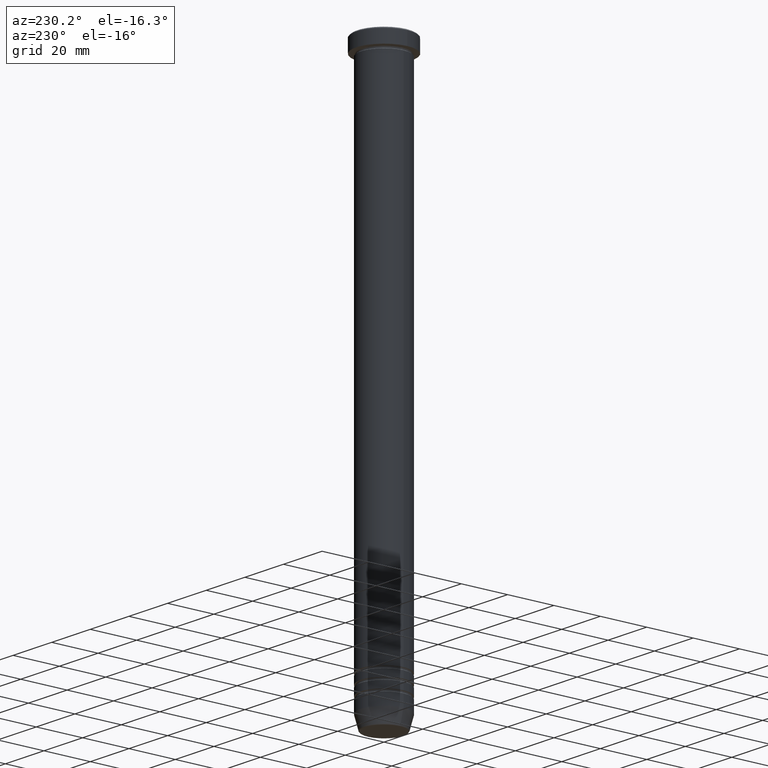
[diagram: clean part render]
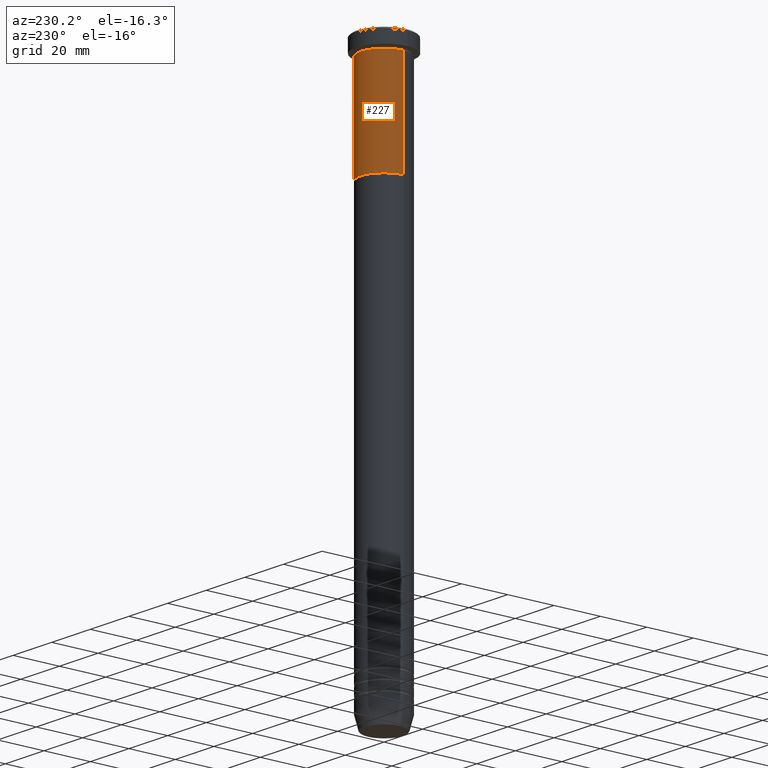
[diagram: same view with one face highlighted and labeled with its STEP entity id]
A machine part, auxiliary view. The second image highlights one B-rep face of the part: STEP entity #227.
In plain terms, the highlighted cylindrical surface (edge-blend (fillet) strip) has radius 10 mm, axis along (-0, -0, 1).
Its self-contained STEP definition (entity closure, byte-faithful):
#62 = DIRECTION ( 'NONE',  ( 1.000000000000000000, 0.000000000000000000, 0.000000000000000000 ) ) ;
#71 = ORIENTED_EDGE ( 'NONE', *, *, #110, .F. ) ;
#110 = EDGE_CURVE ( 'NONE', #902, #918, #1030, .T. ) ;
#138 = DIRECTION ( 'NONE',  ( -0.000000000000000000, -0.000000000000000000, 1.000000000000000000 ) ) ;
#155 = LINE ( 'NONE', #981, #1021 ) ;
#219 = CARTESIAN_POINT ( 'NONE',  ( 0.000000000000000000, 0.000000000000000000, 0.000000000000000000 ) ) ;
#227 = ADVANCED_FACE ( 'NONE', ( #474 ), #550, .T. ) ;
#273 = ORIENTED_EDGE ( 'NONE', *, *, #651, .T. ) ;
#295 = AXIS2_PLACEMENT_3D ( 'NONE', #351, #1004, #513 ) ;
#351 = CARTESIAN_POINT ( 'NONE',  ( 0.000000000000000000, 0.000000000000000000, -6.999999999999999112 ) ) ;
#402 = VECTOR ( 'NONE', #468, 1000.000000000000000 ) ;
#405 = DIRECTION ( 'NONE',  ( -0.000000000000000000, -0.000000000000000000, 1.000000000000000000 ) ) ;
#431 = CARTESIAN_POINT ( 'NONE',  ( -10.00000000000000000, 1.224646799147353256E-15, -6.999999999999999112 ) ) ;
#441 = CARTESIAN_POINT ( 'NONE',  ( 10.00000000000000000, 0.000000000000000000, -6.999999999999999112 ) ) ;
#468 = DIRECTION ( 'NONE',  ( -0.000000000000000000, -0.000000000000000000, 1.000000000000000000 ) ) ;
#474 = FACE_OUTER_BOUND ( 'NONE', #771, .T. ) ;
#503 = VERTEX_POINT ( 'NONE', #603 ) ;
#512 = AXIS2_PLACEMENT_3D ( 'NONE', #219, #138, #805 ) ;
#513 = DIRECTION ( 'NONE',  ( 1.000000000000000000, 0.000000000000000000, 0.000000000000000000 ) ) ;
#544 = CARTESIAN_POINT ( 'NONE',  ( 0.000000000000000000, 0.000000000000000000, -50.00000000000000000 ) ) ;
#547 = ORIENTED_EDGE ( 'NONE', *, *, #849, .F. ) ;
#550 = CYLINDRICAL_SURFACE ( 'NONE', #512, 10.00000000000000000 ) ;
#603 = CARTESIAN_POINT ( 'NONE',  ( 10.00000000000000000, 0.000000000000000000, -50.00000000000000000 ) ) ;
#651 = EDGE_CURVE ( 'NONE', #662, #918, #794, .T. ) ;
#659 = EDGE_CURVE ( 'NONE', #503, #662, #1005, .T. ) ;
#662 = VERTEX_POINT ( 'NONE', #803 ) ;
#704 = ORIENTED_EDGE ( 'NONE', *, *, #659, .T. ) ;
#771 = EDGE_LOOP ( 'NONE', ( #704, #273, #71, #547 ) ) ;
#794 = LINE ( 'NONE', #964, #402 ) ;
#803 = CARTESIAN_POINT ( 'NONE',  ( -10.00000000000000000, 1.224646799147353256E-15, -50.00000000000000000 ) ) ;
#805 = DIRECTION ( 'NONE',  ( 1.000000000000000000, 0.000000000000000000, 0.000000000000000000 ) ) ;
#817 = AXIS2_PLACEMENT_3D ( 'NONE', #544, #877, #62 ) ;
#849 = EDGE_CURVE ( 'NONE', #503, #902, #155, .T. ) ;
#877 = DIRECTION ( 'NONE',  ( -0.000000000000000000, -0.000000000000000000, 1.000000000000000000 ) ) ;
#902 = VERTEX_POINT ( 'NONE', #441 ) ;
#918 = VERTEX_POINT ( 'NONE', #431 ) ;
#964 = CARTESIAN_POINT ( 'NONE',  ( -10.00000000000000000, 1.224646799147353256E-15, 0.000000000000000000 ) ) ;
#981 = CARTESIAN_POINT ( 'NONE',  ( 10.00000000000000000, 0.000000000000000000, 0.000000000000000000 ) ) ;
#1004 = DIRECTION ( 'NONE',  ( -0.000000000000000000, -0.000000000000000000, 1.000000000000000000 ) ) ;
#1005 = CIRCLE ( 'NONE', #817, 10.00000000000000000 ) ;
#1021 = VECTOR ( 'NONE', #405, 1000.000000000000000 ) ;
#1030 = CIRCLE ( 'NONE', #295, 10.00000000000000000 ) ;